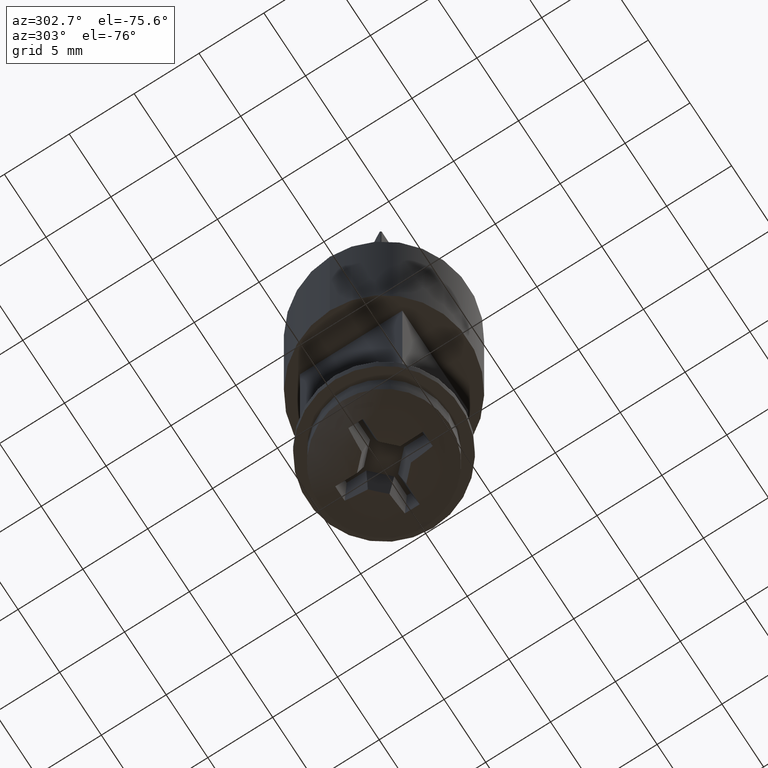
[diagram: clean part render]
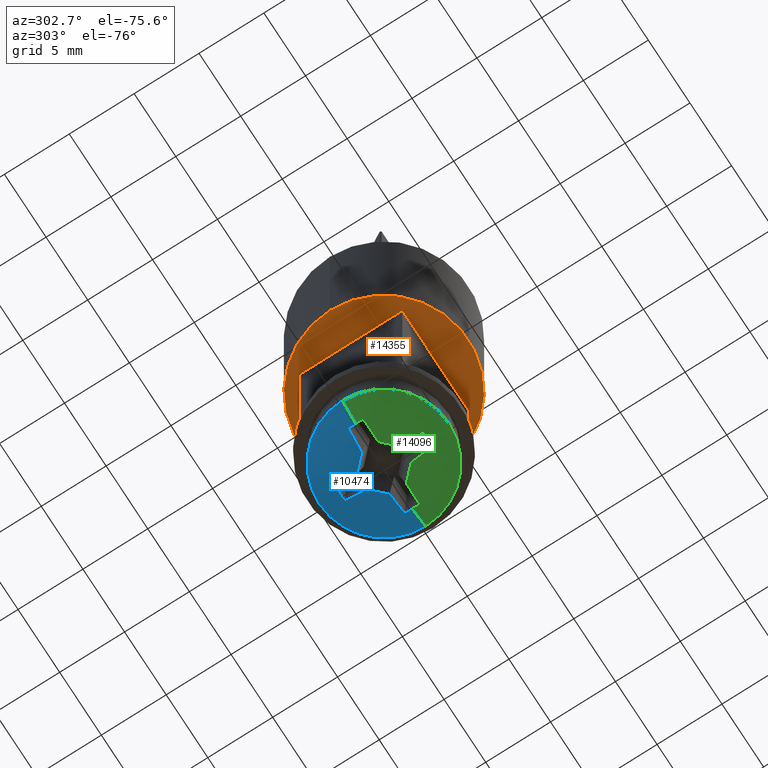
[diagram: same view with three faces highlighted in distinct colors, each labeled with its STEP entity id]
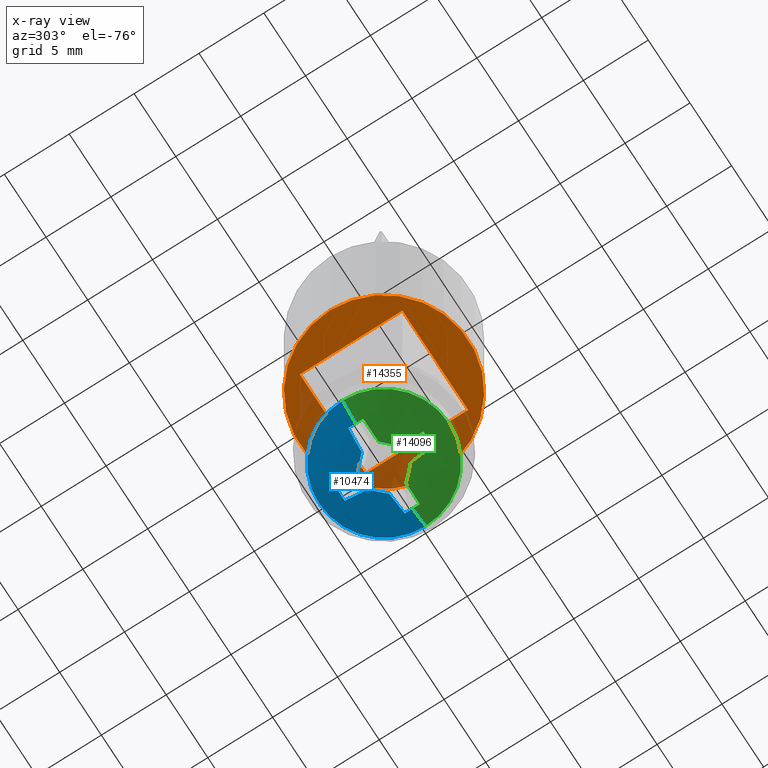
[diagram: x-ray of the same camera — body ghosted, the three highlighted faces saturated]
A machine part, auxiliary view with three faces highlighted in distinct colors.
The next image is the same camera in x-ray (body ghosted, the three faces saturated) — at least one of them is partly hidden behind the body in this view.
Their STEP definitions:

[orange] entity #14355 — the highlighted planar face has unit normal (0, 0, 1).
#1039 = CARTESIAN_POINT ( 'NONE',  ( 3.950000000000000178, 3.950000000000001066, -7.000000000000000000 ) ) ;
#1609 = DIRECTION ( 'NONE',  ( 1.000000000000000000, 0.000000000000000000, 0.000000000000000000 ) ) ;
#1995 = ORIENTED_EDGE ( 'NONE', *, *, #10775, .F. ) ;
#2205 = CIRCLE ( 'NONE', #4232, 6.500000000000000888 ) ;
#2251 = LINE ( 'NONE', #7342, #15237 ) ;
#2325 = VERTEX_POINT ( 'NONE', #1039 ) ;
#3804 = CARTESIAN_POINT ( 'NONE',  ( 0.000000000000000000, 0.000000000000000000, -7.000000000000000000 ) ) ;
#3812 = LINE ( 'NONE', #8860, #7760 ) ;
#4232 = AXIS2_PLACEMENT_3D ( 'NONE', #4485, #7017, #15824 ) ;
#4485 = CARTESIAN_POINT ( 'NONE',  ( 0.000000000000000000, 0.000000000000000000, -7.000000000000000000 ) ) ;
#4946 = ORIENTED_EDGE ( 'NONE', *, *, #5054, .F. ) ;
#5054 = EDGE_CURVE ( 'NONE', #15115, #8241, #2251, .T. ) ;
#5675 = EDGE_CURVE ( 'NONE', #8558, #15115, #3812, .T. ) ;
#5825 = EDGE_CURVE ( 'NONE', #6712, #15231, #8534, .T. ) ;
#6346 = PLANE ( 'NONE',  #11430 ) ;
#6523 = CARTESIAN_POINT ( 'NONE',  ( -3.950000000000000178, -3.949999999999999734, -7.000000000000000000 ) ) ;
#6712 = VERTEX_POINT ( 'NONE', #15625 ) ;
#6737 = LINE ( 'NONE', #13637, #15398 ) ;
#6767 = ORIENTED_EDGE ( 'NONE', *, *, #5825, .F. ) ;
#7017 = DIRECTION ( 'NONE',  ( 0.000000000000000000, 0.000000000000000000, 1.000000000000000000 ) ) ;
#7293 = DIRECTION ( 'NONE',  ( -1.097926250618232273E-16, 1.000000000000000000, -0.000000000000000000 ) ) ;
#7342 = CARTESIAN_POINT ( 'NONE',  ( -3.950000000000001066, 3.950000000000001066, -7.000000000000000000 ) ) ;
#7466 = FACE_OUTER_BOUND ( 'NONE', #15428, .T. ) ;
#7593 = DIRECTION ( 'NONE',  ( 1.000000000000000000, 0.000000000000000000, -0.000000000000000000 ) ) ;
#7760 = VECTOR ( 'NONE', #12662, 1000.000000000000000 ) ;
#8078 = DIRECTION ( 'NONE',  ( 0.000000000000000000, 0.000000000000000000, 1.000000000000000000 ) ) ;
#8241 = VERTEX_POINT ( 'NONE', #9114 ) ;
#8434 = FACE_BOUND ( 'NONE', #14902, .T. ) ;
#8534 = CIRCLE ( 'NONE', #15020, 6.500000000000000888 ) ;
#8555 = ORIENTED_EDGE ( 'NONE', *, *, #11307, .F. ) ;
#8558 = VERTEX_POINT ( 'NONE', #12620 ) ;
#8860 = CARTESIAN_POINT ( 'NONE',  ( 3.950000000000000178, -3.949999999999999734, -7.000000000000000000 ) ) ;
#9114 = CARTESIAN_POINT ( 'NONE',  ( -3.950000000000001066, 3.950000000000001066, -7.000000000000000000 ) ) ;
#9291 = CARTESIAN_POINT ( 'NONE',  ( 0.000000000000000000, 0.000000000000000000, -7.000000000000000000 ) ) ;
#9490 = VECTOR ( 'NONE', #15188, 1000.000000000000000 ) ;
#10775 = EDGE_CURVE ( 'NONE', #15231, #6712, #2205, .T. ) ;
#11307 = EDGE_CURVE ( 'NONE', #8241, #2325, #16181, .T. ) ;
#11430 = AXIS2_PLACEMENT_3D ( 'NONE', #3804, #13932, #7593 ) ;
#11508 = EDGE_CURVE ( 'NONE', #2325, #8558, #6737, .T. ) ;
#12396 = DIRECTION ( 'NONE',  ( 0.000000000000000000, -1.000000000000000000, 0.000000000000000000 ) ) ;
#12620 = CARTESIAN_POINT ( 'NONE',  ( 3.950000000000000178, -3.949999999999999734, -7.000000000000000000 ) ) ;
#12662 = DIRECTION ( 'NONE',  ( -1.000000000000000000, 0.000000000000000000, 0.000000000000000000 ) ) ;
#13119 = CARTESIAN_POINT ( 'NONE',  ( -6.500000000000000888, 0.000000000000000000, -7.000000000000000000 ) ) ;
#13637 = CARTESIAN_POINT ( 'NONE',  ( 3.950000000000000178, 3.950000000000001066, -7.000000000000000000 ) ) ;
#13932 = DIRECTION ( 'NONE',  ( 0.000000000000000000, 0.000000000000000000, 1.000000000000000000 ) ) ;
#14355 = ADVANCED_FACE ( 'NONE', ( #7466, #8434 ), #6346, .F. ) ;
#14550 = ORIENTED_EDGE ( 'NONE', *, *, #5675, .F. ) ;
#14902 = EDGE_LOOP ( 'NONE', ( #4946, #14550, #15931, #8555 ) ) ;
#15020 = AXIS2_PLACEMENT_3D ( 'NONE', #9291, #8078, #1609 ) ;
#15115 = VERTEX_POINT ( 'NONE', #6523 ) ;
#15139 = CARTESIAN_POINT ( 'NONE',  ( 3.950000000000000178, 3.950000000000001066, -7.000000000000000000 ) ) ;
#15188 = DIRECTION ( 'NONE',  ( 1.000000000000000000, -0.000000000000000000, -0.000000000000000000 ) ) ;
#15231 = VERTEX_POINT ( 'NONE', #13119 ) ;
#15237 = VECTOR ( 'NONE', #7293, 1000.000000000000000 ) ;
#15398 = VECTOR ( 'NONE', #12396, 1000.000000000000000 ) ;
#15428 = EDGE_LOOP ( 'NONE', ( #1995, #6767 ) ) ;
#15625 = CARTESIAN_POINT ( 'NONE',  ( 6.500000000000000888, 7.960204194457796463E-16, -7.000000000000000000 ) ) ;
#15824 = DIRECTION ( 'NONE',  ( 1.000000000000000000, 0.000000000000000000, 0.000000000000000000 ) ) ;
#15931 = ORIENTED_EDGE ( 'NONE', *, *, #11508, .F. ) ;
#16181 = LINE ( 'NONE', #15139, #9490 ) ;

[blue] entity #10474 — the highlighted spherical surface has radius 10.2654 mm.
#190 = EDGE_CURVE ( 'NONE', #15540, #12526, #15102, .T. ) ;
#237 = EDGE_CURVE ( 'NONE', #12526, #10498, #9978, .T. ) ;
#241 = AXIS2_PLACEMENT_3D ( 'NONE', #9327, #5488, #489 ) ;
#315 = CARTESIAN_POINT ( 'NONE',  ( 1.965304695223972746E-15, -2.365384615384612754, 0.000000000000000000 ) ) ;
#489 = DIRECTION ( 'NONE',  ( 0.000000000000000000, 0.9848077530122080203, -0.1736481776669307198 ) ) ;
#771 = DIRECTION ( 'NONE',  ( -0.9848077530122080203, -0.1736481776669307198, -1.170115841420716727E-16 ) ) ;
#775 = AXIS2_PLACEMENT_3D ( 'NONE', #8925, #5076, #6403 ) ;
#783 = ORIENTED_EDGE ( 'NONE', *, *, #15923, .T. ) ;
#872 = AXIS2_PLACEMENT_3D ( 'NONE', #2569, #10002, #16225 ) ;
#993 = AXIS2_PLACEMENT_3D ( 'NONE', #4611, #5827, #2082 ) ;
#1282 = EDGE_CURVE ( 'NONE', #11057, #12380, #11754, .T. ) ;
#1500 = EDGE_CURVE ( 'NONE', #10251, #5888, #15889, .T. ) ;
#1640 = CARTESIAN_POINT ( 'NONE',  ( 1.965304695223972746E-15, -2.365384615384612754, 0.000000000000000000 ) ) ;
#1778 = ORIENTED_EDGE ( 'NONE', *, *, #15290, .T. ) ;
#1877 = CARTESIAN_POINT ( 'NONE',  ( 1.663576680841847288, 7.743595506892251734, -0.6474216679610731440 ) ) ;
#2047 = DIRECTION ( 'NONE',  ( 0.000000000000000000, 0.000000000000000000, 1.000000000000000000 ) ) ;
#2082 = DIRECTION ( 'NONE',  ( 0.1736481776669306920, 0.9848077530122080203, 0.000000000000000000 ) ) ;
#2181 = EDGE_CURVE ( 'NONE', #12024, #10251, #10572, .T. ) ;
#2281 = ORIENTED_EDGE ( 'NONE', *, *, #2181, .T. ) ;
#2569 = CARTESIAN_POINT ( 'NONE',  ( 1.965304695223972746E-15, -2.365384615384612754, 0.000000000000000000 ) ) ;
#2985 = CARTESIAN_POINT ( 'NONE',  ( -3.395171996940615777, 7.305490852062482610, -0.5701719969406150446 ) ) ;
#3300 = CARTESIAN_POINT ( 'NONE',  ( 2.577628094797648881E-15, 6.600000000000001421, -4.999999999999998224 ) ) ;
#3691 = DIRECTION ( 'NONE',  ( 0.000000000000000000, -0.1736481776669307475, -0.9848077530122081313 ) ) ;
#3729 = VERTEX_POINT ( 'NONE', #8719 ) ;
#3815 = EDGE_CURVE ( 'NONE', #10498, #9787, #15657, .T. ) ;
#4024 = CARTESIAN_POINT ( 'NONE',  ( 1.638977927651854571, -2.654380644815281798, 0.000000000000000000 ) ) ;
#4434 = CARTESIAN_POINT ( 'NONE',  ( -1.663576680841849065, 7.743595506892254399, -0.6474216679610728109 ) ) ;
#4611 = CARTESIAN_POINT ( 'NONE',  ( -1.100837899208240378, -2.171277192367773612, -1.307979004795567128E-16 ) ) ;
#4613 = ORIENTED_EDGE ( 'NONE', *, *, #237, .T. ) ;
#5001 = CARTESIAN_POINT ( 'NONE',  ( 3.395171996940614889, 7.305490852062486162, -0.5701719969406157107 ) ) ;
#5003 = AXIS2_PLACEMENT_3D ( 'NONE', #1640, #10489, #10431 ) ;
#5076 = DIRECTION ( 'NONE',  ( -0.9848077530122081313, -0.1736481776669307475, 0.000000000000000000 ) ) ;
#5201 = AXIS2_PLACEMENT_3D ( 'NONE', #4024, #6564, #15586 ) ;
#5377 = CARTESIAN_POINT ( 'NONE',  ( -0.1017453381872148177, -2.340012990106731916, 0.1017453381872167745 ) ) ;
#5488 = DIRECTION ( 'NONE',  ( 0.000000000000000000, -0.1736481776669307475, -0.9848077530122081313 ) ) ;
#5551 = ORIENTED_EDGE ( 'NONE', *, *, #1282, .T. ) ;
#5787 = CARTESIAN_POINT ( 'NONE',  ( 1.965304695223972746E-15, 6.600000000000001421, 0.000000000000000000 ) ) ;
#5827 = DIRECTION ( 'NONE',  ( 0.9848077530122080203, -0.1736481776669307198, 1.170115841420716727E-16 ) ) ;
#5888 = VERTEX_POINT ( 'NONE', #4434 ) ;
#6207 = ORIENTED_EDGE ( 'NONE', *, *, #9799, .T. ) ;
#6403 = DIRECTION ( 'NONE',  ( 0.1736481776669307475, -0.9848077530122079093, 0.000000000000000000 ) ) ;
#6464 = ORIENTED_EDGE ( 'NONE', *, *, #7148, .F. ) ;
#6474 = CIRCLE ( 'NONE', #16156, 4.999999999999998224 ) ;
#6564 = DIRECTION ( 'NONE',  ( 0.9848077530122081313, -0.1736481776669307475, 0.000000000000000000 ) ) ;
#6702 = DIRECTION ( 'NONE',  ( 1.224646799147353207E-16, 0.000000000000000000, -1.000000000000000000 ) ) ;
#6773 = AXIS2_PLACEMENT_3D ( 'NONE', #8430, #16145, #10920 ) ;
#6928 = FACE_OUTER_BOUND ( 'NONE', #14476, .T. ) ;
#7131 = SPHERICAL_SURFACE ( 'NONE', #872, 10.26538461538461355 ) ;
#7148 = EDGE_CURVE ( 'NONE', #10239, #9787, #9890, .T. ) ;
#7174 = EDGE_CURVE ( 'NONE', #11899, #12024, #13844, .T. ) ;
#7542 = CARTESIAN_POINT ( 'NONE',  ( 1.965304695223972746E-15, -2.654380644815282242, -1.638977927651854793 ) ) ;
#7910 = DIRECTION ( 'NONE',  ( -0.7071067811865475727, 0.000000000000000000, -0.7071067811865475727 ) ) ;
#8054 = CARTESIAN_POINT ( 'NONE',  ( 1.965304695223972746E-15, 6.600000000000001421, 0.000000000000000000 ) ) ;
#8096 = CIRCLE ( 'NONE', #12766, 10.26434476012571295 ) ;
#8105 = DIRECTION ( 'NONE',  ( -0.000000000000000000, 1.000000000000000000, -0.000000000000000000 ) ) ;
#8393 = VERTEX_POINT ( 'NONE', #3300 ) ;
#8430 = CARTESIAN_POINT ( 'NONE',  ( 1.965304695223972746E-15, -2.171277192367774056, 1.100837899208239934 ) ) ;
#8547 = EDGE_CURVE ( 'NONE', #12380, #3729, #13029, .T. ) ;
#8719 = CARTESIAN_POINT ( 'NONE',  ( 0.5701719969406150446, 7.305490852062482610, -3.395171996940615777 ) ) ;
#8925 = CARTESIAN_POINT ( 'NONE',  ( -1.638977927651855016, -2.654380644815282242, 0.000000000000000000 ) ) ;
#9327 = CARTESIAN_POINT ( 'NONE',  ( 1.965304695223972746E-15, -2.171277192367774056, 1.100837899208239712 ) ) ;
#9370 = DIRECTION ( 'NONE',  ( 0.000000000000000000, 0.000000000000000000, 1.000000000000000000 ) ) ;
#9372 = CARTESIAN_POINT ( 'NONE',  ( 0.6474216679610725889, 7.743595506892253511, -1.663576680841848177 ) ) ;
#9787 = VERTEX_POINT ( 'NONE', #14391 ) ;
#9799 = EDGE_CURVE ( 'NONE', #10239, #8393, #10440, .T. ) ;
#9890 = CIRCLE ( 'NONE', #5003, 10.26538461538461355 ) ;
#9978 = CIRCLE ( 'NONE', #241, 10.20434218995872833 ) ;
#10002 = DIRECTION ( 'NONE',  ( 0.000000000000000000, 0.000000000000000000, -1.000000000000000000 ) ) ;
#10007 = AXIS2_PLACEMENT_3D ( 'NONE', #8054, #8105, #9370 ) ;
#10160 = CARTESIAN_POINT ( 'NONE',  ( 4.999999999999999112, 6.600000000000001421, 0.000000000000000000 ) ) ;
#10239 = VERTEX_POINT ( 'NONE', #10160 ) ;
#10251 = VERTEX_POINT ( 'NONE', #2985 ) ;
#10431 = DIRECTION ( 'NONE',  ( 1.000000000000000000, 0.000000000000000000, 0.000000000000000000 ) ) ;
#10440 = CIRCLE ( 'NONE', #10007, 4.999999999999998224 ) ;
#10474 = ADVANCED_FACE ( 'NONE', ( #6928 ), #7131, .T. ) ;
#10489 = DIRECTION ( 'NONE',  ( 0.000000000000000000, 0.000000000000000000, 1.000000000000000000 ) ) ;
#10498 = VERTEX_POINT ( 'NONE', #5001 ) ;
#10542 = CARTESIAN_POINT ( 'NONE',  ( -4.999999999999995559, 6.600000000000001421, -6.123233995736764310E-16 ) ) ;
#10572 = CIRCLE ( 'NONE', #775, 10.12957817233365709 ) ;
#10657 = AXIS2_PLACEMENT_3D ( 'NONE', #11001, #771, #14801 ) ;
#10920 = DIRECTION ( 'NONE',  ( 0.000000000000000000, 0.9848077530122080203, -0.1736481776669306920 ) ) ;
#11001 = CARTESIAN_POINT ( 'NONE',  ( 1.100837899208239268, -2.171277192367774500, 1.307979004795561458E-16 ) ) ;
#11033 = ORIENTED_EDGE ( 'NONE', *, *, #8547, .T. ) ;
#11057 = VERTEX_POINT ( 'NONE', #12015 ) ;
#11185 = AXIS2_PLACEMENT_3D ( 'NONE', #7542, #3691, #13818 ) ;
#11218 = DIRECTION ( 'NONE',  ( -0.7071067811865475727, 0.000000000000000000, 0.7071067811865475727 ) ) ;
#11754 = CIRCLE ( 'NONE', #10657, 10.20434218995873010 ) ;
#11770 = AXIS2_PLACEMENT_3D ( 'NONE', #315, #6702, #15553 ) ;
#11899 = VERTEX_POINT ( 'NONE', #10542 ) ;
#11939 = ORIENTED_EDGE ( 'NONE', *, *, #1500, .T. ) ;
#12015 = CARTESIAN_POINT ( 'NONE',  ( -0.6474216679610735881, 7.743595506892252622, -1.663576680841847510 ) ) ;
#12024 = VERTEX_POINT ( 'NONE', #12433 ) ;
#12027 = EDGE_CURVE ( 'NONE', #5888, #11057, #8096, .T. ) ;
#12380 = VERTEX_POINT ( 'NONE', #15320 ) ;
#12433 = CARTESIAN_POINT ( 'NONE',  ( -3.397960717812313458, 7.321306474042134305, -4.161301716697294566E-16 ) ) ;
#12526 = VERTEX_POINT ( 'NONE', #1877 ) ;
#12766 = AXIS2_PLACEMENT_3D ( 'NONE', #15993, #16049, #11218 ) ;
#13029 = CIRCLE ( 'NONE', #11185, 10.12957817233365709 ) ;
#13578 = ORIENTED_EDGE ( 'NONE', *, *, #3815, .T. ) ;
#13818 = DIRECTION ( 'NONE',  ( 0.000000000000000000, 0.9848077530122079093, -0.1736481776669307475 ) ) ;
#13844 = CIRCLE ( 'NONE', #11770, 10.26538461538461355 ) ;
#14051 = AXIS2_PLACEMENT_3D ( 'NONE', #5377, #14189, #7910 ) ;
#14189 = DIRECTION ( 'NONE',  ( 0.6963642403200189790, -0.1736481776669307198, -0.6963642403200189790 ) ) ;
#14378 = ORIENTED_EDGE ( 'NONE', *, *, #7174, .T. ) ;
#14391 = CARTESIAN_POINT ( 'NONE',  ( 3.397960717812313458, 7.321306474042134305, 0.000000000000000000 ) ) ;
#14476 = EDGE_LOOP ( 'NONE', ( #6207, #1778, #14378, #2281, #11939, #15724, #5551, #11033, #783, #16261, #4613, #13578, #6464 ) ) ;
#14801 = DIRECTION ( 'NONE',  ( 0.1736481776669306920, -0.9848077530122080203, 0.000000000000000000 ) ) ;
#14932 = CIRCLE ( 'NONE', #993, 10.20434218995872655 ) ;
#15102 = CIRCLE ( 'NONE', #14051, 10.26434476012571295 ) ;
#15290 = EDGE_CURVE ( 'NONE', #8393, #11899, #6474, .T. ) ;
#15320 = CARTESIAN_POINT ( 'NONE',  ( -0.5701719969406154886, 7.305490852062484386, -3.395171996940615777 ) ) ;
#15540 = VERTEX_POINT ( 'NONE', #9372 ) ;
#15553 = DIRECTION ( 'NONE',  ( -1.000000000000000000, 0.000000000000000000, -1.224646799147353454E-16 ) ) ;
#15586 = DIRECTION ( 'NONE',  ( 0.1736481776669307475, 0.9848077530122079093, 0.000000000000000000 ) ) ;
#15657 = CIRCLE ( 'NONE', #5201, 10.12957817233365709 ) ;
#15724 = ORIENTED_EDGE ( 'NONE', *, *, #12027, .T. ) ;
#15863 = DIRECTION ( 'NONE',  ( -0.000000000000000000, 1.000000000000000000, -0.000000000000000000 ) ) ;
#15889 = CIRCLE ( 'NONE', #6773, 10.20434218995872655 ) ;
#15923 = EDGE_CURVE ( 'NONE', #3729, #15540, #14932, .T. ) ;
#15993 = CARTESIAN_POINT ( 'NONE',  ( 0.1017453381872166773, -2.340012990106732360, 0.1017453381872147067 ) ) ;
#16049 = DIRECTION ( 'NONE',  ( -0.6963642403200189790, -0.1736481776669307198, -0.6963642403200189790 ) ) ;
#16145 = DIRECTION ( 'NONE',  ( 0.000000000000000000, -0.1736481776669307198, -0.9848077530122080203 ) ) ;
#16156 = AXIS2_PLACEMENT_3D ( 'NONE', #5787, #15863, #2047 ) ;
#16225 = DIRECTION ( 'NONE',  ( 1.000000000000000000, 0.000000000000000000, 0.000000000000000000 ) ) ;
#16261 = ORIENTED_EDGE ( 'NONE', *, *, #190, .T. ) ;

[green] entity #14096 — the highlighted spherical surface has radius 10.2654 mm.
#8 = AXIS2_PLACEMENT_3D ( 'NONE', #15007, #7345, #2233 ) ;
#127 = EDGE_LOOP ( 'NONE', ( #9344, #11445, #7060, #1139, #16322, #1928, #11827, #999, #9261, #1064, #8098, #15090, #5490 ) ) ;
#182 = CARTESIAN_POINT ( 'NONE',  ( -0.1017453381872148177, -2.340012990106731916, -0.1017453381872167745 ) ) ;
#234 = AXIS2_PLACEMENT_3D ( 'NONE', #13645, #13589, #6119 ) ;
#242 = DIRECTION ( 'NONE',  ( 0.7071067811865475727, 0.000000000000000000, 0.7071067811865473507 ) ) ;
#297 = CARTESIAN_POINT ( 'NONE',  ( 1.965304695223972746E-15, 6.600000000000001421, 4.999999999999998224 ) ) ;
#315 = CARTESIAN_POINT ( 'NONE',  ( 1.965304695223972746E-15, -2.365384615384612754, 0.000000000000000000 ) ) ;
#534 = CIRCLE ( 'NONE', #551, 4.999999999999998224 ) ;
#545 = CARTESIAN_POINT ( 'NONE',  ( 1.965304695223972746E-15, 6.600000000000001421, 0.000000000000000000 ) ) ;
#551 = AXIS2_PLACEMENT_3D ( 'NONE', #545, #12096, #10650 ) ;
#785 = EDGE_CURVE ( 'NONE', #3874, #2742, #11163, .T. ) ;
#999 = ORIENTED_EDGE ( 'NONE', *, *, #9363, .T. ) ;
#1064 = ORIENTED_EDGE ( 'NONE', *, *, #16213, .T. ) ;
#1139 = ORIENTED_EDGE ( 'NONE', *, *, #7148, .T. ) ;
#1278 = AXIS2_PLACEMENT_3D ( 'NONE', #182, #3854, #7710 ) ;
#1380 = CARTESIAN_POINT ( 'NONE',  ( -0.6474216679610725889, 7.743595506892254399, 1.663576680841848177 ) ) ;
#1640 = CARTESIAN_POINT ( 'NONE',  ( 1.965304695223972746E-15, -2.365384615384612754, 0.000000000000000000 ) ) ;
#1667 = EDGE_CURVE ( 'NONE', #3859, #10239, #11773, .T. ) ;
#1817 = AXIS2_PLACEMENT_3D ( 'NONE', #12870, #7800, #15344 ) ;
#1928 = ORIENTED_EDGE ( 'NONE', *, *, #14121, .T. ) ;
#1954 = EDGE_CURVE ( 'NONE', #11899, #3859, #534, .T. ) ;
#2233 = DIRECTION ( 'NONE',  ( 0.1736481776669307475, -0.9848077530122079093, 0.000000000000000000 ) ) ;
#2236 = CARTESIAN_POINT ( 'NONE',  ( -1.663576680841847955, 7.743595506892250846, 0.6474216679610728109 ) ) ;
#2355 = DIRECTION ( 'NONE',  ( 0.000000000000000000, -0.9848077530122080203, -0.1736481776669307198 ) ) ;
#2742 = VERTEX_POINT ( 'NONE', #2236 ) ;
#2755 = AXIS2_PLACEMENT_3D ( 'NONE', #8926, #2756, #242 ) ;
#2756 = DIRECTION ( 'NONE',  ( -0.6963642403200188680, -0.1736481776669307198, 0.6963642403200190900 ) ) ;
#3595 = AXIS2_PLACEMENT_3D ( 'NONE', #9892, #16117, #2355 ) ;
#3854 = DIRECTION ( 'NONE',  ( 0.6963642403200189790, -0.1736481776669307198, 0.6963642403200189790 ) ) ;
#3859 = VERTEX_POINT ( 'NONE', #297 ) ;
#3874 = VERTEX_POINT ( 'NONE', #1380 ) ;
#3901 = DIRECTION ( 'NONE',  ( 0.000000000000000000, -0.1736481776669307475, 0.9848077530122081313 ) ) ;
#4089 = VERTEX_POINT ( 'NONE', #6497 ) ;
#4542 = DIRECTION ( 'NONE',  ( 0.000000000000000000, 0.000000000000000000, 1.000000000000000000 ) ) ;
#4765 = CARTESIAN_POINT ( 'NONE',  ( -1.100837899208240156, -2.171277192367773612, 3.923937014386700644E-16 ) ) ;
#5003 = AXIS2_PLACEMENT_3D ( 'NONE', #1640, #10489, #10431 ) ;
#5117 = CARTESIAN_POINT ( 'NONE',  ( 3.395171996940614889, 7.305490852062482610, 0.5701719969406152666 ) ) ;
#5385 = CARTESIAN_POINT ( 'NONE',  ( 1.965304695223972746E-15, -2.171277192367774056, -1.100837899208239934 ) ) ;
#5490 = ORIENTED_EDGE ( 'NONE', *, *, #10858, .T. ) ;
#5501 = CIRCLE ( 'NONE', #3595, 10.20434218995872655 ) ;
#5705 = DIRECTION ( 'NONE',  ( -0.000000000000000000, 1.000000000000000000, -0.000000000000000000 ) ) ;
#5983 = DIRECTION ( 'NONE',  ( 0.9848077530122081313, -0.1736481776669307475, -3.510347524262150675E-16 ) ) ;
#6119 = DIRECTION ( 'NONE',  ( 0.1736481776669307475, 0.9848077530122079093, 0.000000000000000000 ) ) ;
#6497 = CARTESIAN_POINT ( 'NONE',  ( 0.5701719969406161548, 7.305490852062486162, 3.395171996940615333 ) ) ;
#6589 = CARTESIAN_POINT ( 'NONE',  ( 1.663576680841848177, 7.743595506892254399, 0.6474216679610729219 ) ) ;
#6702 = DIRECTION ( 'NONE',  ( 1.224646799147353207E-16, 0.000000000000000000, -1.000000000000000000 ) ) ;
#7060 = ORIENTED_EDGE ( 'NONE', *, *, #1667, .T. ) ;
#7148 = EDGE_CURVE ( 'NONE', #10239, #9787, #9890, .T. ) ;
#7174 = EDGE_CURVE ( 'NONE', #11899, #12024, #13844, .T. ) ;
#7345 = DIRECTION ( 'NONE',  ( -0.9848077530122081313, -0.1736481776669307475, 0.000000000000000000 ) ) ;
#7358 = DIRECTION ( 'NONE',  ( 0.000000000000000000, 0.000000000000000000, -1.000000000000000000 ) ) ;
#7418 = DIRECTION ( 'NONE',  ( 1.000000000000000000, 0.000000000000000000, 0.000000000000000000 ) ) ;
#7479 = VERTEX_POINT ( 'NONE', #9975 ) ;
#7653 = FACE_OUTER_BOUND ( 'NONE', #127, .T. ) ;
#7695 = AXIS2_PLACEMENT_3D ( 'NONE', #4765, #5983, #15988 ) ;
#7710 = DIRECTION ( 'NONE',  ( 0.7071067811865475727, 0.000000000000000000, -0.7071067811865475727 ) ) ;
#7800 = DIRECTION ( 'NONE',  ( -0.9848077530122081313, -0.1736481776669307475, 4.095405444972508546E-16 ) ) ;
#8098 = ORIENTED_EDGE ( 'NONE', *, *, #785, .T. ) ;
#8202 = VERTEX_POINT ( 'NONE', #6589 ) ;
#8333 = AXIS2_PLACEMENT_3D ( 'NONE', #13991, #3901, #12721 ) ;
#8504 = CIRCLE ( 'NONE', #8, 10.12957817233365709 ) ;
#8870 = CIRCLE ( 'NONE', #234, 10.12957817233365709 ) ;
#8926 = CARTESIAN_POINT ( 'NONE',  ( 0.1017453381872167190, -2.340012990106732360, -0.1017453381872148038 ) ) ;
#9261 = ORIENTED_EDGE ( 'NONE', *, *, #14318, .T. ) ;
#9344 = ORIENTED_EDGE ( 'NONE', *, *, #7174, .F. ) ;
#9363 = EDGE_CURVE ( 'NONE', #10515, #4089, #15371, .T. ) ;
#9787 = VERTEX_POINT ( 'NONE', #14391 ) ;
#9890 = CIRCLE ( 'NONE', #5003, 10.26538461538461355 ) ;
#9892 = CARTESIAN_POINT ( 'NONE',  ( 2.030703645463750991E-15, -2.171277192367774056, -1.100837899208239934 ) ) ;
#9935 = EDGE_CURVE ( 'NONE', #8202, #10515, #15826, .T. ) ;
#9975 = CARTESIAN_POINT ( 'NONE',  ( -3.395171996940615777, 7.305490852062484386, 0.5701719969406159327 ) ) ;
#10160 = CARTESIAN_POINT ( 'NONE',  ( 4.999999999999999112, 6.600000000000001421, 0.000000000000000000 ) ) ;
#10239 = VERTEX_POINT ( 'NONE', #10160 ) ;
#10431 = DIRECTION ( 'NONE',  ( 1.000000000000000000, 0.000000000000000000, 0.000000000000000000 ) ) ;
#10489 = DIRECTION ( 'NONE',  ( 0.000000000000000000, 0.000000000000000000, 1.000000000000000000 ) ) ;
#10515 = VERTEX_POINT ( 'NONE', #11339 ) ;
#10542 = CARTESIAN_POINT ( 'NONE',  ( -4.999999999999995559, 6.600000000000001421, -6.123233995736764310E-16 ) ) ;
#10650 = DIRECTION ( 'NONE',  ( 0.000000000000000000, 0.000000000000000000, 1.000000000000000000 ) ) ;
#10858 = EDGE_CURVE ( 'NONE', #7479, #12024, #8504, .T. ) ;
#11163 = CIRCLE ( 'NONE', #2755, 10.26434476012571650 ) ;
#11339 = CARTESIAN_POINT ( 'NONE',  ( 0.6474216679610733660, 7.743595506892253511, 1.663576680841847732 ) ) ;
#11445 = ORIENTED_EDGE ( 'NONE', *, *, #1954, .T. ) ;
#11770 = AXIS2_PLACEMENT_3D ( 'NONE', #315, #6702, #15553 ) ;
#11773 = CIRCLE ( 'NONE', #13501, 4.999999999999998224 ) ;
#11803 = CIRCLE ( 'NONE', #8333, 10.12957817233365709 ) ;
#11827 = ORIENTED_EDGE ( 'NONE', *, *, #9935, .T. ) ;
#11875 = CARTESIAN_POINT ( 'NONE',  ( -0.5701719969406148225, 7.305490852062486162, 3.395171996940615777 ) ) ;
#11899 = VERTEX_POINT ( 'NONE', #10542 ) ;
#12024 = VERTEX_POINT ( 'NONE', #12433 ) ;
#12096 = DIRECTION ( 'NONE',  ( -0.000000000000000000, 1.000000000000000000, -0.000000000000000000 ) ) ;
#12433 = CARTESIAN_POINT ( 'NONE',  ( -3.397960717812313458, 7.321306474042134305, -4.161301716697294566E-16 ) ) ;
#12721 = DIRECTION ( 'NONE',  ( 0.000000000000000000, -0.9848077530122079093, -0.1736481776669307475 ) ) ;
#12870 = CARTESIAN_POINT ( 'NONE',  ( 1.100837899208239268, -2.171277192367774500, -4.577926516784463377E-16 ) ) ;
#13064 = EDGE_CURVE ( 'NONE', #9787, #13178, #8870, .T. ) ;
#13178 = VERTEX_POINT ( 'NONE', #5117 ) ;
#13241 = CARTESIAN_POINT ( 'NONE',  ( 1.965304695223972746E-15, 6.600000000000001421, 0.000000000000000000 ) ) ;
#13501 = AXIS2_PLACEMENT_3D ( 'NONE', #13241, #5705, #4542 ) ;
#13589 = DIRECTION ( 'NONE',  ( 0.9848077530122081313, -0.1736481776669307475, 0.000000000000000000 ) ) ;
#13645 = CARTESIAN_POINT ( 'NONE',  ( 1.638977927651854571, -2.654380644815281798, 0.000000000000000000 ) ) ;
#13844 = CIRCLE ( 'NONE', #11770, 10.26538461538461355 ) ;
#13946 = AXIS2_PLACEMENT_3D ( 'NONE', #5385, #14199, #15451 ) ;
#13991 = CARTESIAN_POINT ( 'NONE',  ( 1.965304695223972746E-15, -2.654380644815282242, 1.638977927651854793 ) ) ;
#14096 = ADVANCED_FACE ( 'NONE', ( #7653 ), #14962, .T. ) ;
#14121 = EDGE_CURVE ( 'NONE', #13178, #8202, #5501, .T. ) ;
#14199 = DIRECTION ( 'NONE',  ( 0.000000000000000000, -0.1736481776669307198, 0.9848077530122080203 ) ) ;
#14318 = EDGE_CURVE ( 'NONE', #4089, #14926, #11803, .T. ) ;
#14391 = CARTESIAN_POINT ( 'NONE',  ( 3.397960717812313458, 7.321306474042134305, 0.000000000000000000 ) ) ;
#14690 = CARTESIAN_POINT ( 'NONE',  ( 1.965304695223972746E-15, -2.365384615384612754, 0.000000000000000000 ) ) ;
#14893 = AXIS2_PLACEMENT_3D ( 'NONE', #14690, #7358, #7418 ) ;
#14926 = VERTEX_POINT ( 'NONE', #11875 ) ;
#14962 = SPHERICAL_SURFACE ( 'NONE', #14893, 10.26538461538461355 ) ;
#15007 = CARTESIAN_POINT ( 'NONE',  ( -1.638977927651855016, -2.654380644815282242, 0.000000000000000000 ) ) ;
#15090 = ORIENTED_EDGE ( 'NONE', *, *, #16235, .T. ) ;
#15344 = DIRECTION ( 'NONE',  ( 0.1736481776669307198, -0.9848077530122080203, 0.000000000000000000 ) ) ;
#15371 = CIRCLE ( 'NONE', #7695, 10.20434218995872833 ) ;
#15451 = DIRECTION ( 'NONE',  ( 0.000000000000000000, -0.9848077530122080203, -0.1736481776669307198 ) ) ;
#15553 = DIRECTION ( 'NONE',  ( -1.000000000000000000, 0.000000000000000000, -1.224646799147353454E-16 ) ) ;
#15826 = CIRCLE ( 'NONE', #1278, 10.26434476012571295 ) ;
#15900 = CIRCLE ( 'NONE', #13946, 10.20434218995872655 ) ;
#15988 = DIRECTION ( 'NONE',  ( 0.1736481776669307198, 0.9848077530122080203, 0.000000000000000000 ) ) ;
#16117 = DIRECTION ( 'NONE',  ( -5.850579207103583637E-17, -0.1736481776669307198, 0.9848077530122080203 ) ) ;
#16213 = EDGE_CURVE ( 'NONE', #14926, #3874, #16298, .T. ) ;
#16235 = EDGE_CURVE ( 'NONE', #2742, #7479, #15900, .T. ) ;
#16298 = CIRCLE ( 'NONE', #1817, 10.20434218995873010 ) ;
#16322 = ORIENTED_EDGE ( 'NONE', *, *, #13064, .T. ) ;